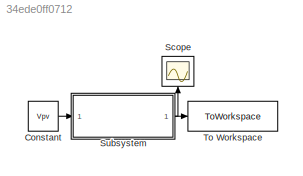
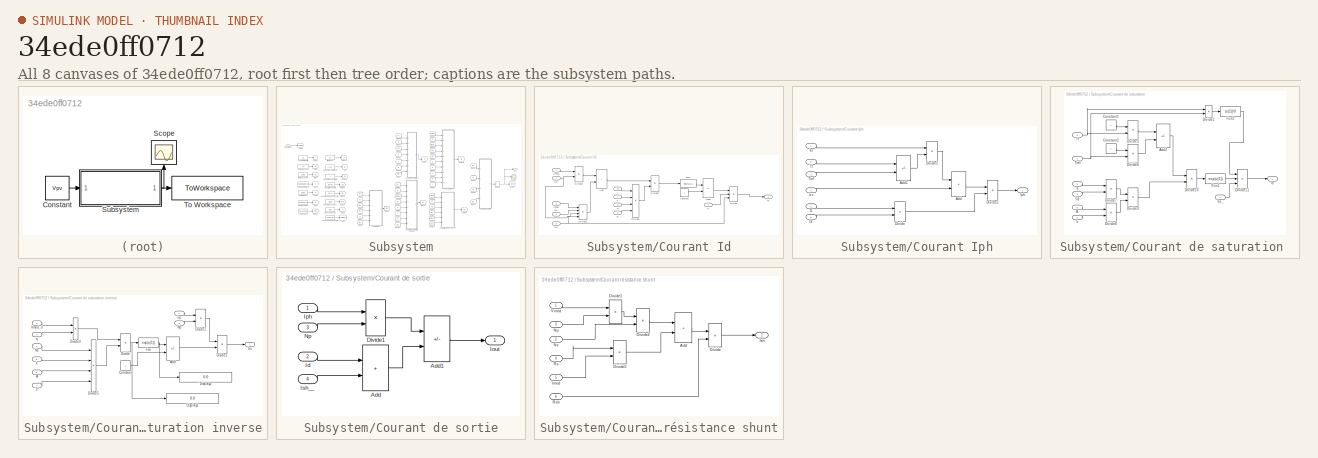
[diagram: thumbnail index - all 8 canvases of the model, root first then tree order]
MODEL slx_34ede0ff0712
KIND model
CONFIG AbsTol = auto
CONFIG EnableMultiTasking = off
CONFIG FixedStep = 0.01
CONFIG MaxStep = auto
CONFIG MinStep = auto
CONFIG RelTol = 1e-3
CONFIG SampleTimeConstraint = Unconstrained
CONFIG SolverName = FixedStepAuto
CONFIG StartTime = 0.0
CONFIG StopTime = 10
BLOCK [Constant] Constant
  Value = Vpv
BLOCK [Scope] Scope
  Floating = off
  NameLocation = right
  NumInputPorts = 1
  Ports = [1]
  ScopeSpecificationString = Simulink.scopes.TimeScopeBlockCfg('CurrentConfiguration', extmgr.ConfigurationSet(extmgr.Configuration('Core','General UI',true),extmgr.Configuration('Core','Source UI',true),extmgr.Configuration('Sources','WiredSimulink',true,'DataLoggingVariableName','ScopeData1'),extmgr.Configuration('Visuals','Time Domain',true,'SerializedDisplays',{struct('MinYLimReal','-0.76364','MaxYLimReal','6.87277','YLab...<+1368ch>
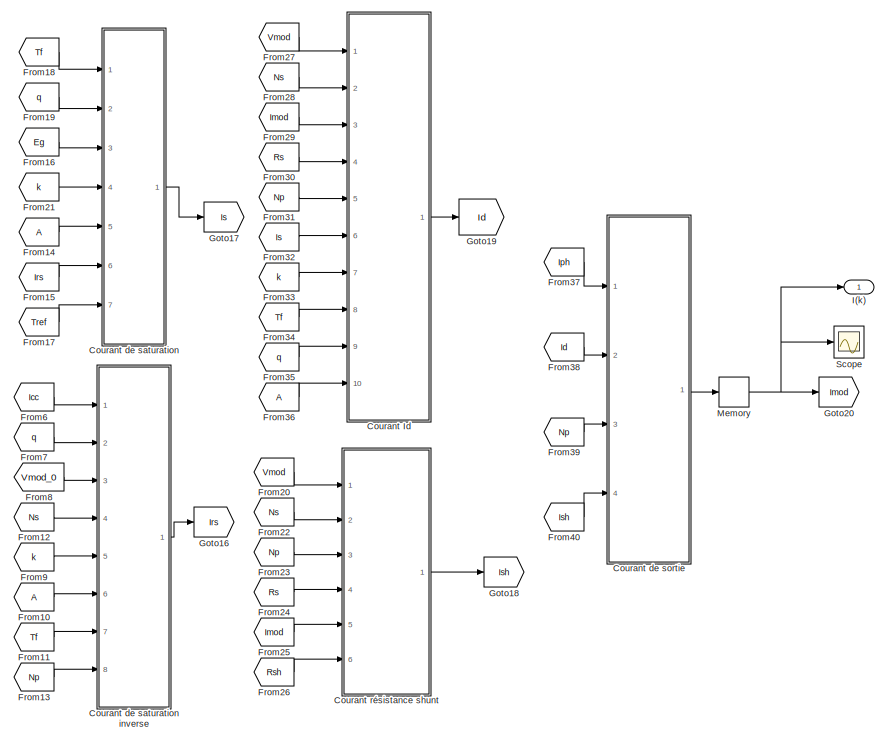
[diagram: Subsystem - part 1/2, right side, full height]
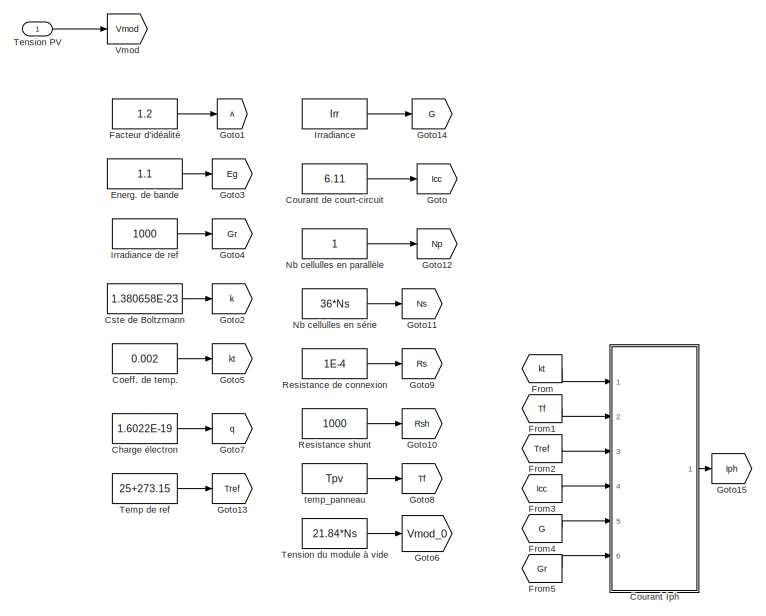
[diagram: Subsystem - part 2/2, left side, full height]
BLOCK [SubSystem] Subsystem
  Ports = [1, 1]
  RequestExecContextInheritance = off
BLOCK [Constant] Subsystem/Charge électron
  Value = 1.6022E-19
BLOCK [Constant] Subsystem/Coeff. de temp.
  Value = 0.002
BLOCK [SubSystem] Subsystem/Courant Id
  Ports = [10, 1]
  RequestExecContextInheritance = off
BLOCK [Inport] Subsystem/Courant Id/A
  Port = 10
BLOCK [Sum] Subsystem/Courant Id/Add
  IconShape = rectangular
  Ports = [2, 1]
BLOCK [Sum] Subsystem/Courant Id/Add2
  IconShape = rectangular
  Inputs = +-
  Ports = [2, 1]
BLOCK [Constant] Subsystem/Courant Id/Constant
BLOCK [Product] Subsystem/Courant Id/Divide
  Inputs = ***
  Ports = [3, 1]
BLOCK [Product] Subsystem/Courant Id/Divide1
  Inputs = ***/
  Ports = [4, 1]
BLOCK [Product] Subsystem/Courant Id/Divide2
  Inputs = */
  Ports = [2, 1]
BLOCK [Product] Subsystem/Courant Id/Divide3
  Inputs = ***/
  Ports = [4, 1]
BLOCK [Product] Subsystem/Courant Id/Divide4
  Inputs = */
  Ports = [2, 1]
BLOCK [Fcn] Subsystem/Courant Id/Fcn1
  Expr = exp(u(1))
BLOCK [Outport] Subsystem/Courant Id/Id
  VectorParamsAs1DForOutWhenUnconnected = off
BLOCK [Inport] Subsystem/Courant Id/Imod
  Port = 3
BLOCK [Inport] Subsystem/Courant Id/Is
  Port = 6
BLOCK [Inport] Subsystem/Courant Id/Np
  Port = 5
BLOCK [Inport] Subsystem/Courant Id/Ns
  Port = 2
BLOCK [Inport] Subsystem/Courant Id/Rs
  Port = 4
BLOCK [Inport] Subsystem/Courant Id/Tf
  Port = 8
BLOCK [Inport] Subsystem/Courant Id/Vmod
BLOCK [Inport] Subsystem/Courant Id/k
  Port = 7
BLOCK [Inport] Subsystem/Courant Id/q
  Port = 9
BLOCK [SubSystem] Subsystem/Courant Iph
  Ports = [6, 1]
  RequestExecContextInheritance = off
BLOCK [Sum] Subsystem/Courant Iph/Add
  IconShape = rectangular
  Ports = [2, 1]
BLOCK [Sum] Subsystem/Courant Iph/Add1
  IconShape = rectangular
  Inputs = +-
  Ports = [2, 1]
BLOCK [Product] Subsystem/Courant Iph/Divide
  Inputs = */
  Ports = [2, 1]
BLOCK [Product] Subsystem/Courant Iph/Divide1
  Inputs = **
  Ports = [2, 1]
BLOCK [Product] Subsystem/Courant Iph/Divide2
  Inputs = **
  Ports = [2, 1]
BLOCK [Inport] Subsystem/Courant Iph/G
  Port = 5
BLOCK [Inport] Subsystem/Courant Iph/Gr
  Port = 6
BLOCK [Inport] Subsystem/Courant Iph/Icc
  Port = 4
BLOCK [Outport] Subsystem/Courant Iph/Iph
  VectorParamsAs1DForOutWhenUnconnected = off
BLOCK [Inport] Subsystem/Courant Iph/Tf
  Port = 2
BLOCK [Inport] Subsystem/Courant Iph/Tref
  Port = 3
BLOCK [Inport] Subsystem/Courant Iph/kt
BLOCK [Constant] Subsystem/Courant de court-circuit
  Value = 6.11
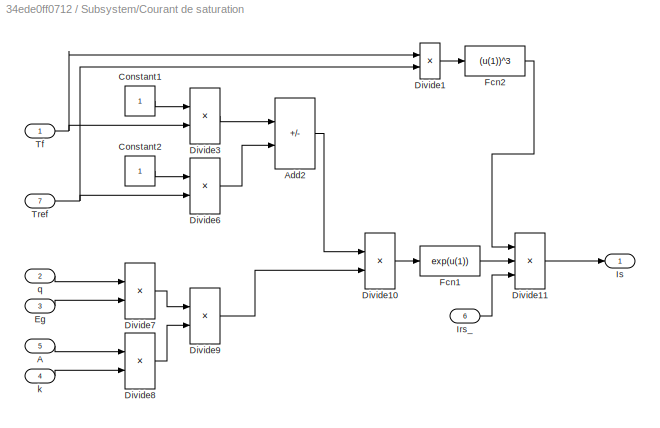
BLOCK [SubSystem] Subsystem/Courant de saturation 
  Ports = [7, 1]
  RequestExecContextInheritance = off
BLOCK [Inport] Subsystem/Courant de saturation /A
  Port = 5
BLOCK [Sum] Subsystem/Courant de saturation /Add2
  IconShape = rectangular
  Inputs = -+
  Ports = [2, 1]
BLOCK [Constant] Subsystem/Courant de saturation /Constant1
BLOCK [Constant] Subsystem/Courant de saturation /Constant2
BLOCK [Product] Subsystem/Courant de saturation /Divide1
  Inputs = */
  Ports = [2, 1]
BLOCK [Product] Subsystem/Courant de saturation /Divide10
  Inputs = **
  Ports = [2, 1]
BLOCK [Product] Subsystem/Courant de saturation /Divide11
  Inputs = ***
  Ports = [3, 1]
BLOCK [Product] Subsystem/Courant de saturation /Divide3
  Inputs = */
  Ports = [2, 1]
BLOCK [Product] Subsystem/Courant de saturation /Divide6
  Inputs = */
  Ports = [2, 1]
BLOCK [Product] Subsystem/Courant de saturation /Divide7
  Inputs = **
  Ports = [2, 1]
BLOCK [Product] Subsystem/Courant de saturation /Divide8
  Inputs = **
  Ports = [2, 1]
BLOCK [Product] Subsystem/Courant de saturation /Divide9
  Inputs = */
  Ports = [2, 1]
BLOCK [Inport] Subsystem/Courant de saturation /Eg 
  Port = 3
BLOCK [Fcn] Subsystem/Courant de saturation /Fcn1
  Expr = exp(u(1))
BLOCK [Fcn] Subsystem/Courant de saturation /Fcn2
  Expr = (u(1))^3
BLOCK [Inport] Subsystem/Courant de saturation /Irs_
  Port = 6
BLOCK [Outport] Subsystem/Courant de saturation /Is
  VectorParamsAs1DForOutWhenUnconnected = off
BLOCK [Inport] Subsystem/Courant de saturation /Tf
BLOCK [Inport] Subsystem/Courant de saturation /Tref
  Port = 7
BLOCK [Inport] Subsystem/Courant de saturation /k
  Port = 4
BLOCK [Inport] Subsystem/Courant de saturation /q
  Port = 2
BLOCK [SubSystem] Subsystem/Courant de saturation inverse
  Ports = [8, 1]
  RequestExecContextInheritance = off
BLOCK [Inport] Subsystem/Courant de saturation inverse/A
  Port = 6
BLOCK [Sum] Subsystem/Courant de saturation inverse/Add
  IconShape = rectangular
  Inputs = +-
  Ports = [2, 1]
BLOCK [Constant] Subsystem/Courant de saturation inverse/Constant
BLOCK [Display] Subsystem/Courant de saturation inverse/Display1
  Decimation = 1
  Ports = [1]
BLOCK [Display] Subsystem/Courant de saturation inverse/Display2
  Decimation = 1
  Ports = [1]
BLOCK [Product] Subsystem/Courant de saturation inverse/Divide
  Inputs = */
  Ports = [2, 1]
BLOCK [Product] Subsystem/Courant de saturation inverse/Divide1
  Inputs = */
  Ports = [2, 1]
BLOCK [Product] Subsystem/Courant de saturation inverse/Divide2
  Inputs = */
  Ports = [2, 1]
BLOCK [Product] Subsystem/Courant de saturation inverse/Divide4
  Inputs = **
  Ports = [2, 1]
BLOCK [Product] Subsystem/Courant de saturation inverse/Divide5
  Inputs = ****
  Ports = [4, 1]
BLOCK [Fcn] Subsystem/Courant de saturation inverse/Fcn
  Expr = exp(u(1))
BLOCK [Inport] Subsystem/Courant de saturation inverse/Icc
BLOCK [Outport] Subsystem/Courant de saturation inverse/Irs
  VectorParamsAs1DForOutWhenUnconnected = off
BLOCK [Inport] Subsystem/Courant de saturation inverse/Np
  Port = 8
BLOCK [Inport] Subsystem/Courant de saturation inverse/Ns 
  Port = 4
BLOCK [Inport] Subsystem/Courant de saturation inverse/Tf
  Port = 7
BLOCK [Inport] Subsystem/Courant de saturation inverse/Vmod_0 
  Port = 3
BLOCK [Inport] Subsystem/Courant de saturation inverse/k
  Port = 5
BLOCK [Inport] Subsystem/Courant de saturation inverse/q
  Port = 2
BLOCK [SubSystem] Subsystem/Courant de sortie
  Ports = [4, 1]
  RequestExecContextInheritance = off
BLOCK [Sum] Subsystem/Courant de sortie/Add
  IconShape = rectangular
  Ports = [2, 1]
BLOCK [Sum] Subsystem/Courant de sortie/Add1
  IconShape = rectangular
  Inputs = +-
  Ports = [2, 1]
BLOCK [Product] Subsystem/Courant de sortie/Divide1
  Inputs = **
  Ports = [2, 1]
BLOCK [Inport] Subsystem/Courant de sortie/Id
  Port = 2
BLOCK [Outport] Subsystem/Courant de sortie/Iout
  VectorParamsAs1DForOutWhenUnconnected = off
BLOCK [Inport] Subsystem/Courant de sortie/Iph
BLOCK [Inport] Subsystem/Courant de sortie/Ish__
  Port = 4
BLOCK [Inport] Subsystem/Courant de sortie/Np
  Port = 3
BLOCK [SubSystem] Subsystem/Courant résistance shunt
  Ports = [6, 1]
  RequestExecContextInheritance = off
BLOCK [Sum] Subsystem/Courant résistance shunt/Add
  IconShape = rectangular
  Ports = [2, 1]
BLOCK [Product] Subsystem/Courant résistance shunt/Divide
  Inputs = */
  Ports = [2, 1]
BLOCK [Product] Subsystem/Courant résistance shunt/Divide1
  Inputs = **
  Ports = [2, 1]
BLOCK [Product] Subsystem/Courant résistance shunt/Divide2
  Inputs = */
  Ports = [2, 1]
BLOCK [Product] Subsystem/Courant résistance shunt/Divide3
  Inputs = **
  Ports = [2, 1]
BLOCK [Inport] Subsystem/Courant résistance shunt/Imod
  Port = 5
BLOCK [Outport] Subsystem/Courant résistance shunt/Ish
  VectorParamsAs1DForOutWhenUnconnected = off
BLOCK [Inport] Subsystem/Courant résistance shunt/Np
  Port = 3
BLOCK [Inport] Subsystem/Courant résistance shunt/Ns
  Port = 2
BLOCK [Inport] Subsystem/Courant résistance shunt/Rs
  Port = 4
BLOCK [Inport] Subsystem/Courant résistance shunt/Rsh
  Port = 6
BLOCK [Inport] Subsystem/Courant résistance shunt/Vmod
BLOCK [Constant] Subsystem/Cste de Boltzmann 
  Value = 1.380658E-23
  VectorParams1D = off
BLOCK [Constant] Subsystem/Energ. de bande
  Value = 1.1
  VectorParams1D = off
BLOCK [Constant] Subsystem/Facteur d'idéalité
  Value = 1.2
BLOCK [From] Subsystem/From
  GotoTag = kt
BLOCK [From] Subsystem/From1
  GotoTag = Tf
BLOCK [From] Subsystem/From10
BLOCK [From] Subsystem/From11
  GotoTag = Tf
BLOCK [From] Subsystem/From12
  GotoTag = Ns
BLOCK [From] Subsystem/From13
  GotoTag = Np
BLOCK [From] Subsystem/From14
BLOCK [From] Subsystem/From15
  GotoTag = Irs
BLOCK [From] Subsystem/From16
  GotoTag = Eg
BLOCK [From] Subsystem/From17
  GotoTag = Tref
BLOCK [From] Subsystem/From18
  GotoTag = Tf
BLOCK [From] Subsystem/From19
  GotoTag = q
BLOCK [From] Subsystem/From2
  GotoTag = Tref
BLOCK [From] Subsystem/From20
  GotoTag = Vmod
BLOCK [From] Subsystem/From21
  GotoTag = k
BLOCK [From] Subsystem/From22
  GotoTag = Ns
BLOCK [From] Subsystem/From23
  GotoTag = Np
BLOCK [From] Subsystem/From24
  GotoTag = Rs
BLOCK [From] Subsystem/From25
  GotoTag = Imod
BLOCK [From] Subsystem/From26
  GotoTag = Rsh
BLOCK [From] Subsystem/From27
  GotoTag = Vmod
BLOCK [From] Subsystem/From28
  GotoTag = Ns
BLOCK [From] Subsystem/From29
  GotoTag = Imod
BLOCK [From] Subsystem/From3
  GotoTag = Icc
BLOCK [From] Subsystem/From30
  GotoTag = Rs
BLOCK [From] Subsystem/From31
  GotoTag = Np
BLOCK [From] Subsystem/From32
  GotoTag = Is
BLOCK [From] Subsystem/From33
  GotoTag = k
BLOCK [From] Subsystem/From34
  GotoTag = Tf
BLOCK [From] Subsystem/From35
  GotoTag = q
BLOCK [From] Subsystem/From36
BLOCK [From] Subsystem/From37
  GotoTag = Iph
BLOCK [From] Subsystem/From38
  GotoTag = Id
BLOCK [From] Subsystem/From39
  GotoTag = Np
BLOCK [From] Subsystem/From4
  GotoTag = G
BLOCK [From] Subsystem/From40
  GotoTag = Ish
BLOCK [From] Subsystem/From5
  GotoTag = Gr
BLOCK [From] Subsystem/From6
  GotoTag = Icc
BLOCK [From] Subsystem/From7
  GotoTag = q
BLOCK [From] Subsystem/From8
  GotoTag = Vmod_0
BLOCK [From] Subsystem/From9
  GotoTag = k
BLOCK [Goto] Subsystem/Goto
  GotoTag = Icc
BLOCK [Goto] Subsystem/Goto1
BLOCK [Goto] Subsystem/Goto10
  GotoTag = Rsh
BLOCK [Goto] Subsystem/Goto11
  GotoTag = Ns
BLOCK [Goto] Subsystem/Goto12
  GotoTag = Np
BLOCK [Goto] Subsystem/Goto13
  GotoTag = Tref
BLOCK [Goto] Subsystem/Goto14
  GotoTag = G
BLOCK [Goto] Subsystem/Goto15
  GotoTag = Iph
BLOCK [Goto] Subsystem/Goto16
  GotoTag = Irs
BLOCK [Goto] Subsystem/Goto17
  GotoTag = Is
BLOCK [Goto] Subsystem/Goto18
  GotoTag = Ish
BLOCK [Goto] Subsystem/Goto19
  GotoTag = Id
BLOCK [Goto] Subsystem/Goto2
  GotoTag = k
BLOCK [Goto] Subsystem/Goto20
  GotoTag = Imod
BLOCK [Goto] Subsystem/Goto3
  GotoTag = Eg
BLOCK [Goto] Subsystem/Goto4
  GotoTag = Gr
BLOCK [Goto] Subsystem/Goto5
  GotoTag = kt
BLOCK [Goto] Subsystem/Goto6
  GotoTag = Vmod_0
BLOCK [Goto] Subsystem/Goto7
  GotoTag = q
BLOCK [Goto] Subsystem/Goto8
  GotoTag = Tf
BLOCK [Goto] Subsystem/Goto9
  GotoTag = Rs
BLOCK [Outport] Subsystem/I(k)
BLOCK [Constant] Subsystem/Irradiance
  Value = Irr
BLOCK [Constant] Subsystem/Irradiance de ref
  Value = 1000
BLOCK [Memory] Subsystem/Memory
  InitialCondition = 0.000001
BLOCK [Constant] Subsystem/Nb cellulles en parallèle
BLOCK [Constant] Subsystem/Nb cellulles en série
  Value = 36*Ns
BLOCK [Constant] Subsystem/Resistance de connexion
  Value = 1E-4
BLOCK [Constant] Subsystem/Resistance shunt
  Value = 1000
BLOCK [Scope] Subsystem/Scope
  Floating = off
  NumInputPorts = 1
  Ports = [1]
  ScopeSpecificationString = Simulink.scopes.TimeScopeBlockCfg('CurrentConfiguration', extmgr.ConfigurationSet(extmgr.Configuration('Core','General UI',true),extmgr.Configuration('Core','Source UI',true),extmgr.Configuration('Sources','WiredSimulink',true),extmgr.Configuration('Visuals','Time Domain',true,'SerializedDisplays',{struct('MinYLimReal','4.33126','MaxYLimReal','6.04172','YLabelReal','','MinYLimMag','4.33126','MaxYL...<+1683ch>
BLOCK [Constant] Subsystem/Temp de ref
  Value = 25+273.15
BLOCK [Inport] Subsystem/Tension PV
BLOCK [Constant] Subsystem/Tension du module à vide
  Value = 21.84*Ns
BLOCK [Goto] Subsystem/Vmod
  GotoTag = Vmod
BLOCK [Constant] Subsystem/temp_panneau
  Value = Tpv
BLOCK [ToWorkspace] To Workspace
  FixptAsFi = on
  MaxDataPoints = inf
  Ports = [1]
  SampleTime = -1
  SaveFormat = Timeseries
  VariableName = Ipv
LINE Constant:1 -> Subsystem:1
LINE Subsystem/Charge électron:1 -> Subsystem/Goto7:1
LINE Subsystem/Coeff. de temp.:1 -> Subsystem/Goto5:1
LINE Subsystem/Courant Id/A:1 -> Subsystem/Courant Id/Divide1:1
LINE Subsystem/Courant Id/Add2:1 -> Subsystem/Courant Id/Divide:1
LINE Subsystem/Courant Id/Add:1 -> Subsystem/Courant Id/Divide2:1
LINE Subsystem/Courant Id/Constant:1 -> Subsystem/Courant Id/Add2:2
LINE Subsystem/Courant Id/Divide1:1 -> Subsystem/Courant Id/Divide2:2
LINE Subsystem/Courant Id/Divide2:1 -> Subsystem/Courant Id/Fcn1:1
LINE Subsystem/Courant Id/Divide3:1 -> Subsystem/Courant Id/Add:2
LINE Subsystem/Courant Id/Divide4:1 -> Subsystem/Courant Id/Add:1
LINE Subsystem/Courant Id/Divide:1 -> Subsystem/Courant Id/Id:1
LINE Subsystem/Courant Id/Fcn1:1 -> Subsystem/Courant Id/Add2:1
LINE Subsystem/Courant Id/Imod:1 -> Subsystem/Courant Id/Divide3:1
LINE Subsystem/Courant Id/Is:1 -> Subsystem/Courant Id/Divide:2
NET Subsystem/Courant Id/Np:1 -> Subsystem/Courant Id/Divide3:4, Subsystem/Courant Id/Divide:3
NET Subsystem/Courant Id/Ns:1 -> Subsystem/Courant Id/Divide3:3, Subsystem/Courant Id/Divide4:2
LINE Subsystem/Courant Id/Rs:1 -> Subsystem/Courant Id/Divide3:2
LINE Subsystem/Courant Id/Tf:1 -> Subsystem/Courant Id/Divide1:3
LINE Subsystem/Courant Id/Vmod:1 -> Subsystem/Courant Id/Divide4:1
LINE Subsystem/Courant Id/k:1 -> Subsystem/Courant Id/Divide1:2
LINE Subsystem/Courant Id/q:1 -> Subsystem/Courant Id/Divide1:4
LINE Subsystem/Courant Id:1 -> Subsystem/Goto19:1
LINE Subsystem/Courant Iph/Add1:1 -> Subsystem/Courant Iph/Divide1:2
LINE Subsystem/Courant Iph/Add:1 -> Subsystem/Courant Iph/Divide2:1
LINE Subsystem/Courant Iph/Divide1:1 -> Subsystem/Courant Iph/Add:1
LINE Subsystem/Courant Iph/Divide2:1 -> Subsystem/Courant Iph/Iph:1
LINE Subsystem/Courant Iph/Divide:1 -> Subsystem/Courant Iph/Divide2:2
LINE Subsystem/Courant Iph/G:1 -> Subsystem/Courant Iph/Divide:1
LINE Subsystem/Courant Iph/Gr:1 -> Subsystem/Courant Iph/Divide:2
LINE Subsystem/Courant Iph/Icc:1 -> Subsystem/Courant Iph/Add:2
LINE Subsystem/Courant Iph/Tf:1 -> Subsystem/Courant Iph/Add1:1
LINE Subsystem/Courant Iph/Tref:1 -> Subsystem/Courant Iph/Add1:2
LINE Subsystem/Courant Iph/kt:1 -> Subsystem/Courant Iph/Divide1:1
LINE Subsystem/Courant Iph:1 -> Subsystem/Goto15:1
LINE Subsystem/Courant de court-circuit:1 -> Subsystem/Goto:1
LINE Subsystem/Courant de saturation /A:1 -> Subsystem/Courant de saturation /Divide8:1
LINE Subsystem/Courant de saturation /Add2:1 -> Subsystem/Courant de saturation /Divide10:1
LINE Subsystem/Courant de saturation /Constant1:1 -> Subsystem/Courant de saturation /Divide3:1
LINE Subsystem/Courant de saturation /Constant2:1 -> Subsystem/Courant de saturation /Divide6:1
LINE Subsystem/Courant de saturation /Divide10:1 -> Subsystem/Courant de saturation /Fcn1:1
LINE Subsystem/Courant de saturation /Divide11:1 -> Subsystem/Courant de saturation /Is:1
LINE Subsystem/Courant de saturation /Divide1:1 -> Subsystem/Courant de saturation /Fcn2:1
LINE Subsystem/Courant de saturation /Divide3:1 -> Subsystem/Courant de saturation /Add2:1
LINE Subsystem/Courant de saturation /Divide6:1 -> Subsystem/Courant de saturation /Add2:2
LINE Subsystem/Courant de saturation /Divide7:1 -> Subsystem/Courant de saturation /Divide9:1
LINE Subsystem/Courant de saturation /Divide8:1 -> Subsystem/Courant de saturation /Divide9:2
LINE Subsystem/Courant de saturation /Divide9:1 -> Subsystem/Courant de saturation /Divide10:2
LINE Subsystem/Courant de saturation /Eg :1 -> Subsystem/Courant de saturation /Divide7:2
LINE Subsystem/Courant de saturation /Fcn1:1 -> Subsystem/Courant de saturation /Divide11:2
LINE Subsystem/Courant de saturation /Fcn2:1 -> Subsystem/Courant de saturation /Divide11:1
LINE Subsystem/Courant de saturation /Irs_:1 -> Subsystem/Courant de saturation /Divide11:3
NET Subsystem/Courant de saturation /Tf:1 -> Subsystem/Courant de saturation /Divide1:1, Subsystem/Courant de saturation /Divide3:2
NET Subsystem/Courant de saturation /Tref:1 -> Subsystem/Courant de saturation /Divide1:2, Subsystem/Courant de saturation /Divide6:2
LINE Subsystem/Courant de saturation /k:1 -> Subsystem/Courant de saturation /Divide8:2
LINE Subsystem/Courant de saturation /q:1 -> Subsystem/Courant de saturation /Divide7:1
LINE Subsystem/Courant de saturation :1 -> Subsystem/Goto17:1
LINE Subsystem/Courant de saturation inverse/A:1 -> Subsystem/Courant de saturation inverse/Divide5:3
LINE Subsystem/Courant de saturation inverse/Add:1 -> Subsystem/Courant de saturation inverse/Divide2:2
LINE Subsystem/Courant de saturation inverse/Constant:1 -> Subsystem/Courant de saturation inverse/Add:2
LINE Subsystem/Courant de saturation inverse/Divide1:1 -> Subsystem/Courant de saturation inverse/Divide2:1
LINE Subsystem/Courant de saturation inverse/Divide2:1 -> Subsystem/Courant de saturation inverse/Irs:1
LINE Subsystem/Courant de saturation inverse/Divide4:1 -> Subsystem/Courant de saturation inverse/Divide:1
LINE Subsystem/Courant de saturation inverse/Divide5:1 -> Subsystem/Courant de saturation inverse/Divide:2
NET Subsystem/Courant de saturation inverse/Divide:1 -> Subsystem/Courant de saturation inverse/Display1:1, Subsystem/Courant de saturation inverse/Fcn:1
NET Subsystem/Courant de saturation inverse/Fcn:1 -> Subsystem/Courant de saturation inverse/Add:1, Subsystem/Courant de saturation inverse/Display2:1
LINE Subsystem/Courant de saturation inverse/Icc:1 -> Subsystem/Courant de saturation inverse/Divide1:1
LINE Subsystem/Courant de saturation inverse/Np:1 -> Subsystem/Courant de saturation inverse/Divide1:2
LINE Subsystem/Courant de saturation inverse/Ns :1 -> Subsystem/Courant de saturation inverse/Divide5:1
LINE Subsystem/Courant de saturation inverse/Tf:1 -> Subsystem/Courant de saturation inverse/Divide5:4
LINE Subsystem/Courant de saturation inverse/Vmod_0 :1 -> Subsystem/Courant de saturation inverse/Divide4:1
LINE Subsystem/Courant de saturation inverse/k:1 -> Subsystem/Courant de saturation inverse/Divide5:2
LINE Subsystem/Courant de saturation inverse/q:1 -> Subsystem/Courant de saturation inverse/Divide4:2
LINE Subsystem/Courant de saturation inverse:1 -> Subsystem/Goto16:1
LINE Subsystem/Courant de sortie/Add1:1 -> Subsystem/Courant de sortie/Iout:1
LINE Subsystem/Courant de sortie/Add:1 -> Subsystem/Courant de sortie/Add1:2
LINE Subsystem/Courant de sortie/Divide1:1 -> Subsystem/Courant de sortie/Add1:1
LINE Subsystem/Courant de sortie/Id:1 -> Subsystem/Courant de sortie/Add:1
LINE Subsystem/Courant de sortie/Iph:1 -> Subsystem/Courant de sortie/Divide1:1
LINE Subsystem/Courant de sortie/Ish__:1 -> Subsystem/Courant de sortie/Add:2
LINE Subsystem/Courant de sortie/Np:1 -> Subsystem/Courant de sortie/Divide1:2
LINE Subsystem/Courant de sortie:1 -> Subsystem/Memory:1
LINE Subsystem/Courant résistance shunt/Add:1 -> Subsystem/Courant résistance shunt/Divide:1
LINE Subsystem/Courant résistance shunt/Divide1:1 -> Subsystem/Courant résistance shunt/Divide2:1
LINE Subsystem/Courant résistance shunt/Divide2:1 -> Subsystem/Courant résistance shunt/Add:1
LINE Subsystem/Courant résistance shunt/Divide3:1 -> Subsystem/Courant résistance shunt/Add:2
LINE Subsystem/Courant résistance shunt/Divide:1 -> Subsystem/Courant résistance shunt/Ish:1
LINE Subsystem/Courant résistance shunt/Imod:1 -> Subsystem/Courant résistance shunt/Divide3:2
LINE Subsystem/Courant résistance shunt/Np:1 -> Subsystem/Courant résistance shunt/Divide1:2
LINE Subsystem/Courant résistance shunt/Ns:1 -> Subsystem/Courant résistance shunt/Divide2:2
LINE Subsystem/Courant résistance shunt/Rs:1 -> Subsystem/Courant résistance shunt/Divide3:1
LINE Subsystem/Courant résistance shunt/Rsh:1 -> Subsystem/Courant résistance shunt/Divide:2
LINE Subsystem/Courant résistance shunt/Vmod:1 -> Subsystem/Courant résistance shunt/Divide1:1
LINE Subsystem/Courant résistance shunt:1 -> Subsystem/Goto18:1
LINE Subsystem/Cste de Boltzmann :1 -> Subsystem/Goto2:1
LINE Subsystem/Energ. de bande:1 -> Subsystem/Goto3:1
LINE Subsystem/Facteur d'idéalité:1 -> Subsystem/Goto1:1
LINE Subsystem/From10:1 -> Subsystem/Courant de saturation inverse:6
LINE Subsystem/From11:1 -> Subsystem/Courant de saturation inverse:7
LINE Subsystem/From12:1 -> Subsystem/Courant de saturation inverse:4
LINE Subsystem/From13:1 -> Subsystem/Courant de saturation inverse:8
LINE Subsystem/From14:1 -> Subsystem/Courant de saturation :5
LINE Subsystem/From15:1 -> Subsystem/Courant de saturation :6
LINE Subsystem/From16:1 -> Subsystem/Courant de saturation :3
LINE Subsystem/From17:1 -> Subsystem/Courant de saturation :7
LINE Subsystem/From18:1 -> Subsystem/Courant de saturation :1
LINE Subsystem/From19:1 -> Subsystem/Courant de saturation :2
LINE Subsystem/From1:1 -> Subsystem/Courant Iph:2
LINE Subsystem/From20:1 -> Subsystem/Courant résistance shunt:1
LINE Subsystem/From21:1 -> Subsystem/Courant de saturation :4
LINE Subsystem/From22:1 -> Subsystem/Courant résistance shunt:2
LINE Subsystem/From23:1 -> Subsystem/Courant résistance shunt:3
LINE Subsystem/From24:1 -> Subsystem/Courant résistance shunt:4
LINE Subsystem/From25:1 -> Subsystem/Courant résistance shunt:5
LINE Subsystem/From26:1 -> Subsystem/Courant résistance shunt:6
LINE Subsystem/From27:1 -> Subsystem/Courant Id:1
LINE Subsystem/From28:1 -> Subsystem/Courant Id:2
LINE Subsystem/From29:1 -> Subsystem/Courant Id:3
LINE Subsystem/From2:1 -> Subsystem/Courant Iph:3
LINE Subsystem/From30:1 -> Subsystem/Courant Id:4
LINE Subsystem/From31:1 -> Subsystem/Courant Id:5
LINE Subsystem/From32:1 -> Subsystem/Courant Id:6
LINE Subsystem/From33:1 -> Subsystem/Courant Id:7
LINE Subsystem/From34:1 -> Subsystem/Courant Id:8
LINE Subsystem/From35:1 -> Subsystem/Courant Id:9
LINE Subsystem/From36:1 -> Subsystem/Courant Id:10
LINE Subsystem/From37:1 -> Subsystem/Courant de sortie:1
LINE Subsystem/From38:1 -> Subsystem/Courant de sortie:2
LINE Subsystem/From39:1 -> Subsystem/Courant de sortie:3
LINE Subsystem/From3:1 -> Subsystem/Courant Iph:4
LINE Subsystem/From40:1 -> Subsystem/Courant de sortie:4
LINE Subsystem/From4:1 -> Subsystem/Courant Iph:5
LINE Subsystem/From5:1 -> Subsystem/Courant Iph:6
LINE Subsystem/From6:1 -> Subsystem/Courant de saturation inverse:1
LINE Subsystem/From7:1 -> Subsystem/Courant de saturation inverse:2
LINE Subsystem/From8:1 -> Subsystem/Courant de saturation inverse:3
LINE Subsystem/From9:1 -> Subsystem/Courant de saturation inverse:5
LINE Subsystem/From:1 -> Subsystem/Courant Iph:1
LINE Subsystem/Irradiance de ref:1 -> Subsystem/Goto4:1
LINE Subsystem/Irradiance:1 -> Subsystem/Goto14:1
NET Subsystem/Memory:1 -> Subsystem/Goto20:1, Subsystem/I(k):1, Subsystem/Scope:1
LINE Subsystem/Nb cellulles en parallèle:1 -> Subsystem/Goto12:1
LINE Subsystem/Nb cellulles en série:1 -> Subsystem/Goto11:1
LINE Subsystem/Resistance de connexion:1 -> Subsystem/Goto9:1
LINE Subsystem/Resistance shunt:1 -> Subsystem/Goto10:1
LINE Subsystem/Temp de ref:1 -> Subsystem/Goto13:1
LINE Subsystem/Tension PV:1 -> Subsystem/Vmod:1
LINE Subsystem/Tension du module à vide:1 -> Subsystem/Goto6:1
LINE Subsystem/temp_panneau:1 -> Subsystem/Goto8:1
NET Subsystem:1 -> Scope:1, To Workspace:1
note: NET lines group one-source signal fan-out (src -> all destinations, sorted); 1:1 wires keep LINE
